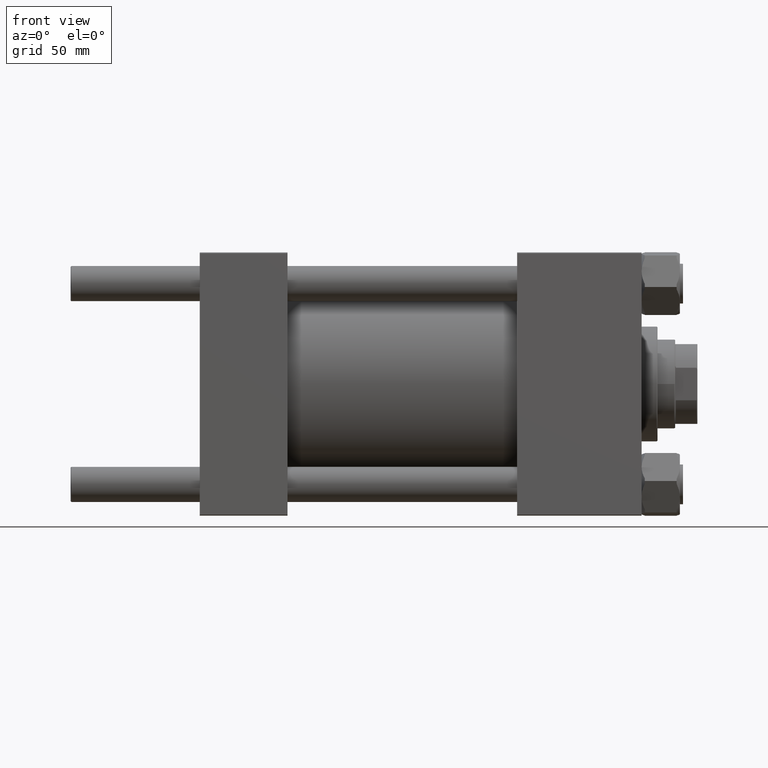
[diagram: clean part render]
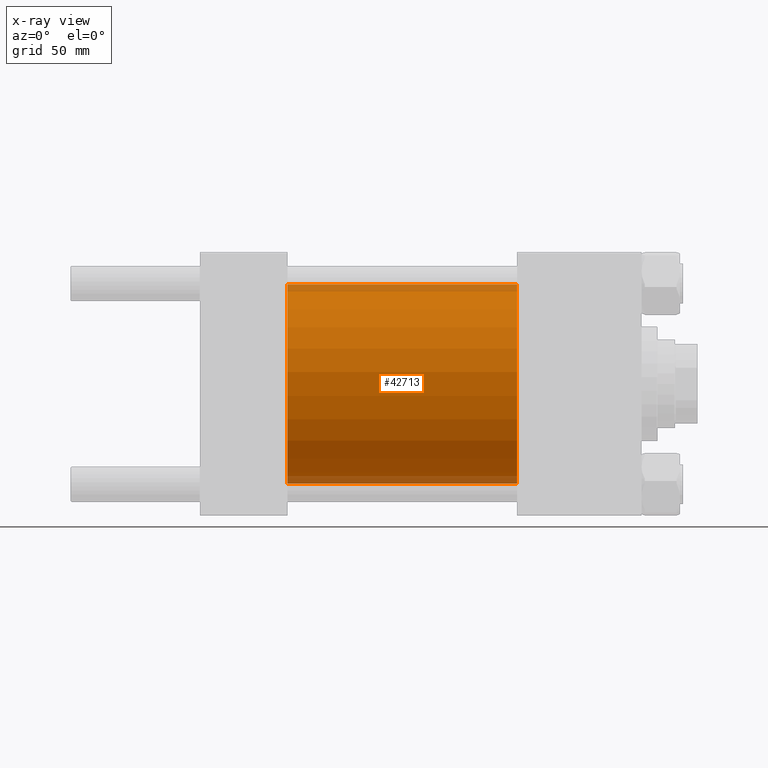
[diagram: x-ray — body ghosted, one internal face saturated and labeled with its STEP entity id]
A machine part, front view, then the same camera in x-ray: the body is ghosted and one INTERNAL B-rep face — a face not visible from any outside direction — is saturated and labeled: STEP entity #42713.
In plain terms, the highlighted cylindrical surface (partial cylindrical patch) has radius 62.5 mm, axis along (-1, -0, -0).
Its self-contained STEP definition (entity closure, byte-faithful):
#746 = DIRECTION ( 'NONE',  ( 1.000000000000000000, 0.000000000000000000, 0.000000000000000000 ) ) ;
#2777 = AXIS2_PLACEMENT_3D ( 'NONE', #37695, #23334, #23576 ) ;
#3225 = DIRECTION ( 'NONE',  ( -1.000000000000000000, -0.000000000000000000, -0.000000000000000000 ) ) ;
#3743 = ORIENTED_EDGE ( 'NONE', *, *, #18923, .F. ) ;
#3899 = LINE ( 'NONE', #7489, #17907 ) ;
#7489 = CARTESIAN_POINT ( 'NONE',  ( 198.9999999999999716, 7.654042494670957804E-15, -62.50000000000000000 ) ) ;
#7735 = DIRECTION ( 'NONE',  ( -1.000000000000000000, -0.000000000000000000, -0.000000000000000000 ) ) ;
#7779 = VERTEX_POINT ( 'NONE', #15164 ) ;
#7866 = VERTEX_POINT ( 'NONE', #24533 ) ;
#10002 = VERTEX_POINT ( 'NONE', #43140 ) ;
#11196 = EDGE_CURVE ( 'NONE', #10002, #7779, #34571, .T. ) ;
#11303 = CARTESIAN_POINT ( 'NONE',  ( 55.00000000000000000, 0.000000000000000000, 62.50000000000000000 ) ) ;
#12222 = DIRECTION ( 'NONE',  ( 0.000000000000000000, 0.000000000000000000, -1.000000000000000000 ) ) ;
#12480 = CARTESIAN_POINT ( 'NONE',  ( 55.00000000000000000, 0.000000000000000000, 0.000000000000000000 ) ) ;
#12987 = CIRCLE ( 'NONE', #45585, 62.50000000000000000 ) ;
#13788 = CYLINDRICAL_SURFACE ( 'NONE', #34951, 62.50000000000000000 ) ;
#15164 = CARTESIAN_POINT ( 'NONE',  ( 198.9999999999999716, 7.654042494670957804E-15, -62.50000000000000000 ) ) ;
#17197 = VERTEX_POINT ( 'NONE', #11303 ) ;
#17907 = VECTOR ( 'NONE', #7735, 1000.000000000000000 ) ;
#18099 = ORIENTED_EDGE ( 'NONE', *, *, #11196, .T. ) ;
#18923 = EDGE_CURVE ( 'NONE', #10002, #17197, #26416, .T. ) ;
#19216 = EDGE_CURVE ( 'NONE', #7779, #7866, #3899, .T. ) ;
#20678 = DIRECTION ( 'NONE',  ( 0.000000000000000000, 0.000000000000000000, 1.000000000000000000 ) ) ;
#23334 = DIRECTION ( 'NONE',  ( 1.000000000000000000, 0.000000000000000000, 0.000000000000000000 ) ) ;
#23576 = DIRECTION ( 'NONE',  ( 0.000000000000000000, 0.000000000000000000, -1.000000000000000000 ) ) ;
#24244 = CARTESIAN_POINT ( 'NONE',  ( 198.9999999999999716, 0.000000000000000000, 0.000000000000000000 ) ) ;
#24533 = CARTESIAN_POINT ( 'NONE',  ( 55.00000000000000000, 7.654042494670957804E-15, -62.50000000000000000 ) ) ;
#26416 = LINE ( 'NONE', #29993, #47190 ) ;
#29993 = CARTESIAN_POINT ( 'NONE',  ( 198.9999999999999716, 0.000000000000000000, 62.50000000000000000 ) ) ;
#33697 = EDGE_LOOP ( 'NONE', ( #18099, #37212, #42066, #3743 ) ) ;
#34571 = CIRCLE ( 'NONE', #2777, 62.50000000000000000 ) ;
#34951 = AXIS2_PLACEMENT_3D ( 'NONE', #24244, #47978, #20678 ) ;
#37212 = ORIENTED_EDGE ( 'NONE', *, *, #19216, .T. ) ;
#37695 = CARTESIAN_POINT ( 'NONE',  ( 198.9999999999999716, 0.000000000000000000, 0.000000000000000000 ) ) ;
#42066 = ORIENTED_EDGE ( 'NONE', *, *, #43623, .F. ) ;
#42713 = ADVANCED_FACE ( 'NONE', ( #48725 ), #13788, .F. ) ;
#43140 = CARTESIAN_POINT ( 'NONE',  ( 198.9999999999999716, 0.000000000000000000, 62.50000000000000000 ) ) ;
#43623 = EDGE_CURVE ( 'NONE', #17197, #7866, #12987, .T. ) ;
#45585 = AXIS2_PLACEMENT_3D ( 'NONE', #12480, #746, #12222 ) ;
#47190 = VECTOR ( 'NONE', #3225, 1000.000000000000000 ) ;
#47978 = DIRECTION ( 'NONE',  ( -1.000000000000000000, -0.000000000000000000, -0.000000000000000000 ) ) ;
#48725 = FACE_OUTER_BOUND ( 'NONE', #33697, .T. ) ;